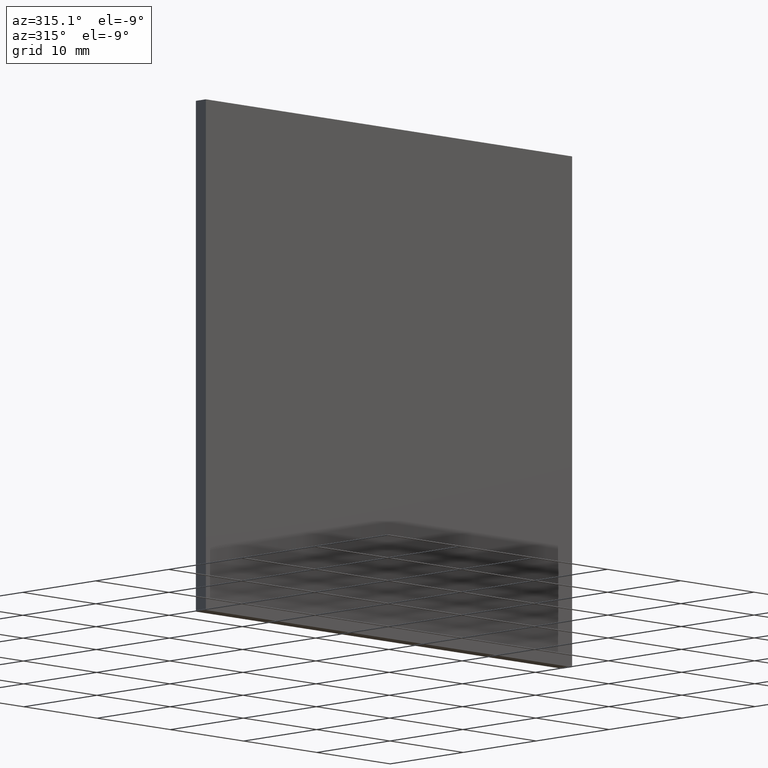
[diagram: clean part render]
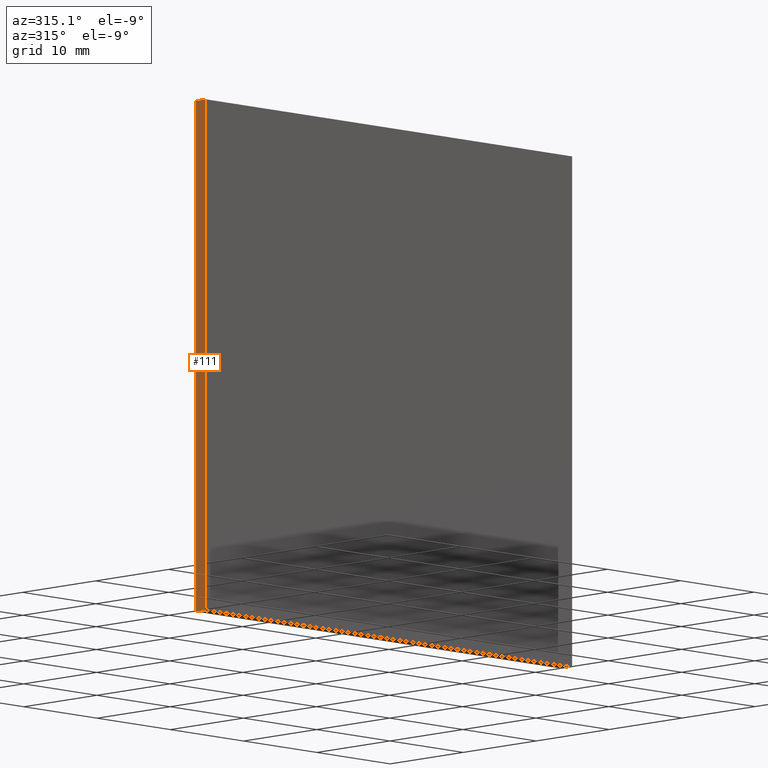
[diagram: same view with one face highlighted and labeled with its STEP entity id]
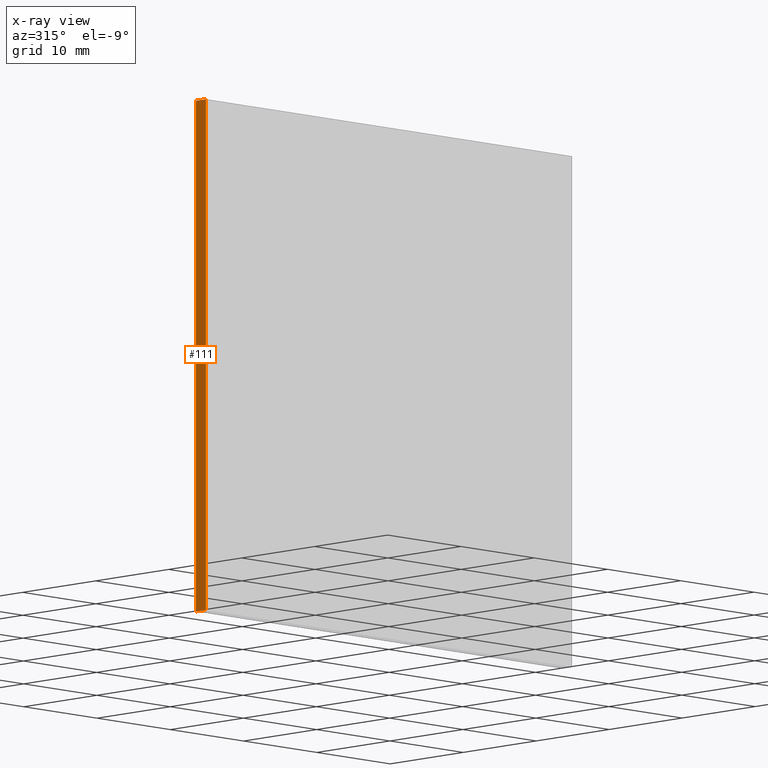
[diagram: x-ray of the same camera — body ghosted, the highlighted face saturated]
A machine part, auxiliary view. The second image highlights one B-rep face of the part: STEP entity #111.
The next image is the same camera in x-ray: the body ghosted, the highlighted face saturated — about 0% of this face is hidden behind the body in this view.
In plain terms, the highlighted planar face has unit normal (1, -0, 0).
Its self-contained STEP definition (entity closure, byte-faithful):
#17 = FACE_OUTER_BOUND ( 'NONE', #183, .T. ) ;
#18 = VERTEX_POINT ( 'NONE', #43 ) ;
#29 = VERTEX_POINT ( 'NONE', #113 ) ;
#31 = LINE ( 'NONE', #137, #84 ) ;
#32 = EDGE_CURVE ( 'NONE', #91, #18, #149, .T. ) ;
#36 = CARTESIAN_POINT ( 'NONE',  ( -25.00000000000000400, 0.0000000000000000000, 25.00000000000000000 ) ) ;
#43 = CARTESIAN_POINT ( 'NONE',  ( -25.00000000000000400, 0.0000000000000000000, 25.00000000000000000 ) ) ;
#50 = EDGE_CURVE ( 'NONE', #199, #18, #146, .T. ) ;
#57 = CARTESIAN_POINT ( 'NONE',  ( -25.00000000000000400, 1.360000000000000100, 25.00000000000000000 ) ) ;
#62 = CARTESIAN_POINT ( 'NONE',  ( -25.00000000000000400, 0.0000000000000000000, -25.00000000000000000 ) ) ;
#83 = EDGE_CURVE ( 'NONE', #29, #199, #31, .T. ) ;
#84 = VECTOR ( 'NONE', #185, 1000.000000000000000 ) ;
#90 = ORIENTED_EDGE ( 'NONE', *, *, #196, .F. ) ;
#91 = VERTEX_POINT ( 'NONE', #193 ) ;
#93 = DIRECTION ( 'NONE',  ( -0.0000000000000000000, -0.0000000000000000000, 1.000000000000000000 ) ) ;
#101 = DIRECTION ( 'NONE',  ( -0.0000000000000000000, -1.000000000000000000, -0.0000000000000000000 ) ) ;
#105 = CARTESIAN_POINT ( 'NONE',  ( -25.00000000000000400, 1.360000000000000100, 25.00000000000000000 ) ) ;
#108 = VECTOR ( 'NONE', #93, 1000.000000000000000 ) ;
#111 = ADVANCED_FACE ( 'NONE', ( #17 ), #140, .F. ) ;
#113 = CARTESIAN_POINT ( 'NONE',  ( -25.00000000000000400, 1.360000000000000100, -25.00000000000000000 ) ) ;
#130 = ORIENTED_EDGE ( 'NONE', *, *, #83, .T. ) ;
#133 = DIRECTION ( 'NONE',  ( 1.000000000000000000, -0.0000000000000000000, 0.0000000000000000000 ) ) ;
#137 = CARTESIAN_POINT ( 'NONE',  ( -25.00000000000000400, 1.360000000000000100, -25.00000000000000000 ) ) ;
#140 = PLANE ( 'NONE',  #147 ) ;
#146 = LINE ( 'NONE', #36, #162 ) ;
#147 = AXIS2_PLACEMENT_3D ( 'NONE', #153, #133, #154 ) ;
#149 = LINE ( 'NONE', #105, #168 ) ;
#152 = ORIENTED_EDGE ( 'NONE', *, *, #32, .F. ) ;
#153 = CARTESIAN_POINT ( 'NONE',  ( -25.00000000000000400, 1.360000000000000100, 25.00000000000000000 ) ) ;
#154 = DIRECTION ( 'NONE',  ( 0.0000000000000000000, 0.0000000000000000000, -1.000000000000000000 ) ) ;
#156 = LINE ( 'NONE', #57, #108 ) ;
#159 = ORIENTED_EDGE ( 'NONE', *, *, #50, .T. ) ;
#162 = VECTOR ( 'NONE', #192, 1000.000000000000000 ) ;
#168 = VECTOR ( 'NONE', #101, 1000.000000000000000 ) ;
#183 = EDGE_LOOP ( 'NONE', ( #159, #152, #90, #130 ) ) ;
#185 = DIRECTION ( 'NONE',  ( -0.0000000000000000000, -1.000000000000000000, -0.0000000000000000000 ) ) ;
#192 = DIRECTION ( 'NONE',  ( -0.0000000000000000000, -0.0000000000000000000, 1.000000000000000000 ) ) ;
#193 = CARTESIAN_POINT ( 'NONE',  ( -25.00000000000000400, 1.360000000000000100, 25.00000000000000000 ) ) ;
#196 = EDGE_CURVE ( 'NONE', #29, #91, #156, .T. ) ;
#199 = VERTEX_POINT ( 'NONE', #62 ) ;